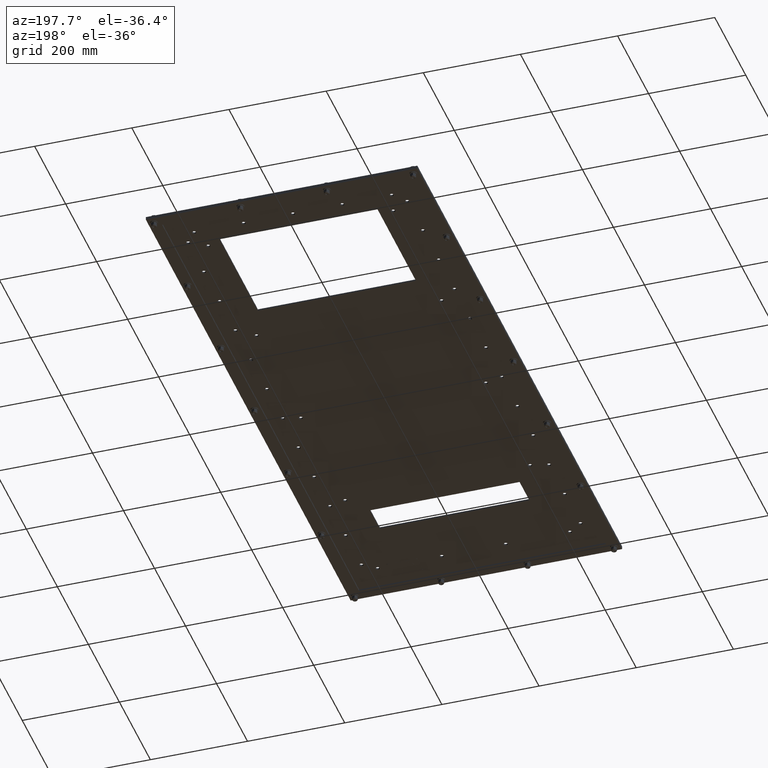
[diagram: clean part render]
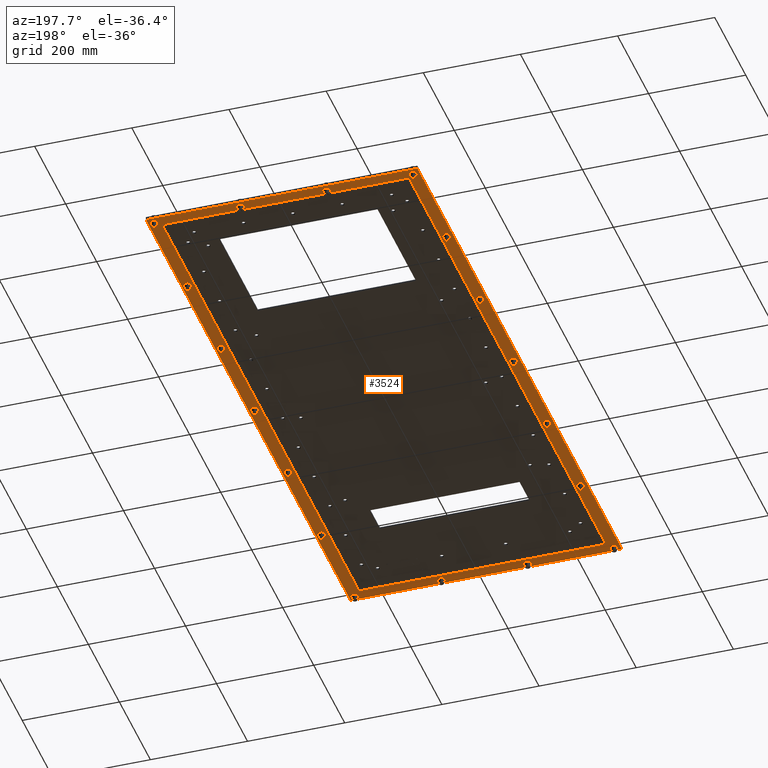
[diagram: same view with one face highlighted and labeled with its STEP entity id]
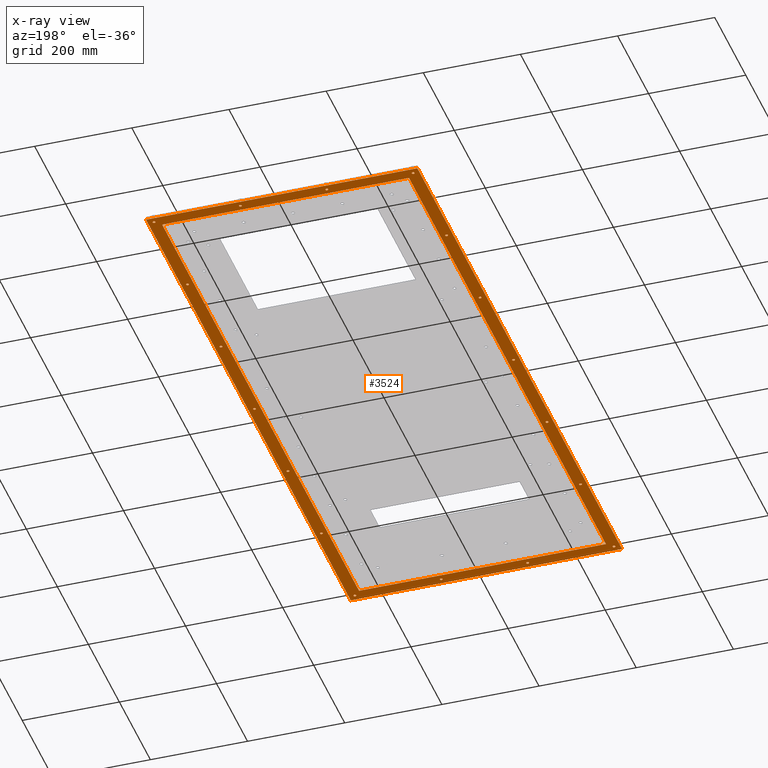
[diagram: x-ray of the same camera — body ghosted, the highlighted face saturated]
A machine part, auxiliary view. The second image highlights one B-rep face of the part: STEP entity #3524.
The next image is the same camera in x-ray: the body ghosted, the highlighted face saturated — about 0% of this face is hidden behind the body in this view.
In plain terms, the highlighted planar face has unit normal (0, 0, 1).
Its self-contained STEP definition (entity closure, byte-faithful):
#211=LINE('',#5544,#364);
#214=LINE('',#5550,#367);
#217=LINE('',#5556,#370);
#220=LINE('',#5560,#373);
#223=LINE('',#5568,#376);
#227=LINE('',#5575,#380);
#230=LINE('',#5581,#383);
#232=LINE('',#5584,#385);
#364=VECTOR('',#4589,50.);
#367=VECTOR('',#4594,20.);
#370=VECTOR('',#4599,50.);
#373=VECTOR('',#4604,20.);
#376=VECTOR('',#4609,52.);
#380=VECTOR('',#4615,22.);
#383=VECTOR('',#4620,52.);
#385=VECTOR('',#4624,22.);
#502=PLANE('',#3877);
#777=FACE_BOUND('',#1337,.T.);
#778=FACE_BOUND('',#1338,.T.);
#779=FACE_BOUND('',#1339,.T.);
#780=FACE_BOUND('',#1340,.T.);
#781=FACE_BOUND('',#1341,.T.);
#782=FACE_BOUND('',#1342,.T.);
#783=FACE_BOUND('',#1343,.T.);
#784=FACE_BOUND('',#1344,.T.);
#785=FACE_BOUND('',#1345,.T.);
#786=FACE_BOUND('',#1346,.T.);
#787=FACE_BOUND('',#1347,.T.);
#788=FACE_BOUND('',#1348,.T.);
#789=FACE_BOUND('',#1349,.T.);
#790=FACE_BOUND('',#1350,.T.);
#791=FACE_BOUND('',#1351,.T.);
#792=FACE_BOUND('',#1352,.T.);
#793=FACE_BOUND('',#1353,.T.);
#794=FACE_BOUND('',#1354,.T.);
#795=FACE_BOUND('',#1355,.T.);
#928=FACE_OUTER_BOUND('',#1336,.T.);
#1336=EDGE_LOOP('',(#2800,#2801,#2802,#2803));
#1337=EDGE_LOOP('',(#2804));
#1338=EDGE_LOOP('',(#2805));
#1339=EDGE_LOOP('',(#2806));
#1340=EDGE_LOOP('',(#2807));
#1341=EDGE_LOOP('',(#2808));
#1342=EDGE_LOOP('',(#2809));
#1343=EDGE_LOOP('',(#2810));
#1344=EDGE_LOOP('',(#2811));
#1345=EDGE_LOOP('',(#2812));
#1346=EDGE_LOOP('',(#2813));
#1347=EDGE_LOOP('',(#2814));
#1348=EDGE_LOOP('',(#2815));
#1349=EDGE_LOOP('',(#2816));
#1350=EDGE_LOOP('',(#2817));
#1351=EDGE_LOOP('',(#2818));
#1352=EDGE_LOOP('',(#2819));
#1353=EDGE_LOOP('',(#2820));
#1354=EDGE_LOOP('',(#2821));
#1355=EDGE_LOOP('',(#2822,#2823,#2824,#2825));
#1595=CIRCLE('',#3815,0.109375);
#1597=CIRCLE('',#3818,0.109375);
#1599=CIRCLE('',#3821,0.109375);
#1601=CIRCLE('',#3824,0.109375);
#1603=CIRCLE('',#3827,0.109375);
#1605=CIRCLE('',#3830,0.109375);
#1607=CIRCLE('',#3833,0.109375);
#1609=CIRCLE('',#3836,0.109375);
#1611=CIRCLE('',#3839,0.109375);
#1613=CIRCLE('',#3842,0.109375);
#1615=CIRCLE('',#3845,0.109375);
#1617=CIRCLE('',#3848,0.109375);
#1619=CIRCLE('',#3851,0.109375);
#1621=CIRCLE('',#3854,0.109375);
#1623=CIRCLE('',#3857,0.109375);
#1625=CIRCLE('',#3860,0.109375);
#1627=CIRCLE('',#3863,0.109375);
#1629=CIRCLE('',#3866,0.109375);
#1831=VERTEX_POINT('',#5448);
#1833=VERTEX_POINT('',#5453);
#1835=VERTEX_POINT('',#5458);
#1837=VERTEX_POINT('',#5463);
#1839=VERTEX_POINT('',#5468);
#1841=VERTEX_POINT('',#5473);
#1843=VERTEX_POINT('',#5478);
#1845=VERTEX_POINT('',#5483);
#1847=VERTEX_POINT('',#5488);
#1849=VERTEX_POINT('',#5493);
#1851=VERTEX_POINT('',#5498);
#1853=VERTEX_POINT('',#5503);
#1855=VERTEX_POINT('',#5508);
#1857=VERTEX_POINT('',#5513);
#1859=VERTEX_POINT('',#5518);
#1861=VERTEX_POINT('',#5523);
#1863=VERTEX_POINT('',#5528);
#1865=VERTEX_POINT('',#5533);
#1869=VERTEX_POINT('',#5541);
#1870=VERTEX_POINT('',#5543);
#1872=VERTEX_POINT('',#5549);
#1874=VERTEX_POINT('',#5555);
#1877=VERTEX_POINT('',#5565);
#1878=VERTEX_POINT('',#5567);
#1880=VERTEX_POINT('',#5573);
#1882=VERTEX_POINT('',#5579);
#2161=EDGE_CURVE('',#1831,#1831,#1595,.T.);
#2163=EDGE_CURVE('',#1833,#1833,#1597,.T.);
#2165=EDGE_CURVE('',#1835,#1835,#1599,.T.);
#2167=EDGE_CURVE('',#1837,#1837,#1601,.T.);
#2169=EDGE_CURVE('',#1839,#1839,#1603,.T.);
#2171=EDGE_CURVE('',#1841,#1841,#1605,.T.);
#2173=EDGE_CURVE('',#1843,#1843,#1607,.T.);
#2175=EDGE_CURVE('',#1845,#1845,#1609,.T.);
#2177=EDGE_CURVE('',#1847,#1847,#1611,.T.);
#2179=EDGE_CURVE('',#1849,#1849,#1613,.T.);
#2181=EDGE_CURVE('',#1851,#1851,#1615,.T.);
#2183=EDGE_CURVE('',#1853,#1853,#1617,.T.);
#2185=EDGE_CURVE('',#1855,#1855,#1619,.T.);
#2187=EDGE_CURVE('',#1857,#1857,#1621,.T.);
#2189=EDGE_CURVE('',#1859,#1859,#1623,.T.);
#2191=EDGE_CURVE('',#1861,#1861,#1625,.T.);
#2193=EDGE_CURVE('',#1863,#1863,#1627,.T.);
#2195=EDGE_CURVE('',#1865,#1865,#1629,.T.);
#2199=EDGE_CURVE('',#1870,#1869,#211,.T.);
#2202=EDGE_CURVE('',#1872,#1870,#214,.T.);
#2205=EDGE_CURVE('',#1874,#1872,#217,.T.);
#2208=EDGE_CURVE('',#1869,#1874,#220,.T.);
#2211=EDGE_CURVE('',#1878,#1877,#223,.T.);
#2215=EDGE_CURVE('',#1877,#1880,#227,.T.);
#2218=EDGE_CURVE('',#1880,#1882,#230,.T.);
#2220=EDGE_CURVE('',#1882,#1878,#232,.T.);
#2800=ORIENTED_EDGE('',*,*,#2220,.T.);
#2801=ORIENTED_EDGE('',*,*,#2211,.T.);
#2802=ORIENTED_EDGE('',*,*,#2215,.T.);
#2803=ORIENTED_EDGE('',*,*,#2218,.T.);
#2804=ORIENTED_EDGE('',*,*,#2161,.T.);
#2805=ORIENTED_EDGE('',*,*,#2163,.T.);
#2806=ORIENTED_EDGE('',*,*,#2165,.T.);
#2807=ORIENTED_EDGE('',*,*,#2167,.T.);
#2808=ORIENTED_EDGE('',*,*,#2169,.T.);
#2809=ORIENTED_EDGE('',*,*,#2171,.T.);
#2810=ORIENTED_EDGE('',*,*,#2173,.T.);
#2811=ORIENTED_EDGE('',*,*,#2175,.T.);
#2812=ORIENTED_EDGE('',*,*,#2177,.T.);
#2813=ORIENTED_EDGE('',*,*,#2179,.T.);
#2814=ORIENTED_EDGE('',*,*,#2181,.T.);
#2815=ORIENTED_EDGE('',*,*,#2183,.T.);
#2816=ORIENTED_EDGE('',*,*,#2185,.T.);
#2817=ORIENTED_EDGE('',*,*,#2187,.T.);
#2818=ORIENTED_EDGE('',*,*,#2189,.T.);
#2819=ORIENTED_EDGE('',*,*,#2191,.T.);
#2820=ORIENTED_EDGE('',*,*,#2193,.T.);
#2821=ORIENTED_EDGE('',*,*,#2195,.T.);
#2822=ORIENTED_EDGE('',*,*,#2199,.T.);
#2823=ORIENTED_EDGE('',*,*,#2208,.T.);
#2824=ORIENTED_EDGE('',*,*,#2205,.T.);
#2825=ORIENTED_EDGE('',*,*,#2202,.T.);
#3524=ADVANCED_FACE('',(#928,#777,#778,#779,#780,#781,#782,#783,#784,#785,
#786,#787,#788,#789,#790,#791,#792,#793,#794,#795),#502,.F.);
#3815=AXIS2_PLACEMENT_3D('',#5449,#4479,#4480);
#3818=AXIS2_PLACEMENT_3D('',#5454,#4485,#4486);
#3821=AXIS2_PLACEMENT_3D('',#5459,#4491,#4492);
#3824=AXIS2_PLACEMENT_3D('',#5464,#4497,#4498);
#3827=AXIS2_PLACEMENT_3D('',#5469,#4503,#4504);
#3830=AXIS2_PLACEMENT_3D('',#5474,#4509,#4510);
#3833=AXIS2_PLACEMENT_3D('',#5479,#4515,#4516);
#3836=AXIS2_PLACEMENT_3D('',#5484,#4521,#4522);
#3839=AXIS2_PLACEMENT_3D('',#5489,#4527,#4528);
#3842=AXIS2_PLACEMENT_3D('',#5494,#4533,#4534);
#3845=AXIS2_PLACEMENT_3D('',#5499,#4539,#4540);
#3848=AXIS2_PLACEMENT_3D('',#5504,#4545,#4546);
#3851=AXIS2_PLACEMENT_3D('',#5509,#4551,#4552);
#3854=AXIS2_PLACEMENT_3D('',#5514,#4557,#4558);
#3857=AXIS2_PLACEMENT_3D('',#5519,#4563,#4564);
#3860=AXIS2_PLACEMENT_3D('',#5524,#4569,#4570);
#3863=AXIS2_PLACEMENT_3D('',#5529,#4575,#4576);
#3866=AXIS2_PLACEMENT_3D('',#5534,#4581,#4582);
#3877=AXIS2_PLACEMENT_3D('',#5586,#4627,#4628);
#4479=DIRECTION('center_axis',(0.,0.,1.));
#4480=DIRECTION('ref_axis',(-1.,0.,0.));
#4485=DIRECTION('center_axis',(0.,0.,1.));
#4486=DIRECTION('ref_axis',(-1.,0.,0.));
#4491=DIRECTION('center_axis',(0.,0.,1.));
#4492=DIRECTION('ref_axis',(-1.,0.,0.));
#4497=DIRECTION('center_axis',(0.,0.,1.));
#4498=DIRECTION('ref_axis',(-1.,0.,0.));
#4503=DIRECTION('center_axis',(0.,0.,1.));
#4504=DIRECTION('ref_axis',(-1.,0.,0.));
#4509=DIRECTION('center_axis',(0.,0.,1.));
#4510=DIRECTION('ref_axis',(-1.,0.,0.));
#4515=DIRECTION('center_axis',(0.,0.,1.));
#4516=DIRECTION('ref_axis',(-1.,0.,0.));
#4521=DIRECTION('center_axis',(0.,0.,1.));
#4522=DIRECTION('ref_axis',(-1.,0.,0.));
#4527=DIRECTION('center_axis',(0.,0.,1.));
#4528=DIRECTION('ref_axis',(-1.,0.,0.));
#4533=DIRECTION('center_axis',(0.,0.,1.));
#4534=DIRECTION('ref_axis',(-1.,0.,0.));
#4539=DIRECTION('center_axis',(0.,0.,1.));
#4540=DIRECTION('ref_axis',(-1.,0.,0.));
#4545=DIRECTION('center_axis',(0.,0.,1.));
#4546=DIRECTION('ref_axis',(-1.,0.,0.));
#4551=DIRECTION('center_axis',(0.,0.,1.));
#4552=DIRECTION('ref_axis',(-1.,0.,0.));
#4557=DIRECTION('center_axis',(0.,0.,1.));
#4558=DIRECTION('ref_axis',(-1.,0.,0.));
#4563=DIRECTION('center_axis',(0.,0.,1.));
#4564=DIRECTION('ref_axis',(-1.,0.,0.));
#4569=DIRECTION('center_axis',(0.,0.,1.));
#4570=DIRECTION('ref_axis',(-1.,0.,0.));
#4575=DIRECTION('center_axis',(0.,0.,1.));
#4576=DIRECTION('ref_axis',(-1.,0.,0.));
#4581=DIRECTION('center_axis',(0.,0.,1.));
#4582=DIRECTION('ref_axis',(-1.,0.,0.));
#4589=DIRECTION('',(-1.67844740730732E-16,1.,0.));
#4594=DIRECTION('',(1.,5.59482469102441E-16,0.));
#4599=DIRECTION('',(5.59482469102441E-16,-1.,0.));
#4604=DIRECTION('',(-1.,0.,0.));
#4609=DIRECTION('',(3.22778347559101E-16,-1.,0.));
#4615=DIRECTION('',(-1.,0.,0.));
#4620=DIRECTION('',(-4.03472934448876E-16,1.,0.));
#4624=DIRECTION('',(1.,0.,0.));
#4627=DIRECTION('center_axis',(0.,0.,1.));
#4628=DIRECTION('ref_axis',(1.,0.,0.));
#5448=CARTESIAN_POINT('',(13.3394636570073,-34.4703914895966,0.));
#5449=CARTESIAN_POINT('Origin',(13.2300886570073,-34.4703914895966,0.));
#5453=CARTESIAN_POINT('',(6.33946365700733,-34.4703914895966,0.));
#5454=CARTESIAN_POINT('Origin',(6.23008865700733,-34.4703914895966,0.));
#5458=CARTESIAN_POINT('',(-0.66053634299267,-34.4703914895966,0.));
#5459=CARTESIAN_POINT('Origin',(-0.769911342992669,-34.4703914895966,0.));
#5463=CARTESIAN_POINT('',(-7.66053634299267,-34.4703914895966,0.));
#5464=CARTESIAN_POINT('Origin',(-7.76991134299267,-34.4703914895966,0.));
#5468=CARTESIAN_POINT('',(13.3394636570073,-25.9703914895966,0.));
#5469=CARTESIAN_POINT('Origin',(13.2300886570073,-25.9703914895966,0.));
#5473=CARTESIAN_POINT('',(-7.66053634299267,-25.9703914895966,0.));
#5474=CARTESIAN_POINT('Origin',(-7.76991134299267,-25.9703914895966,0.));
#5478=CARTESIAN_POINT('',(13.3394636570073,-17.4703914895966,0.));
#5479=CARTESIAN_POINT('Origin',(13.2300886570073,-17.4703914895966,0.));
#5483=CARTESIAN_POINT('',(-7.66053634299268,-17.4703914895966,0.));
#5484=CARTESIAN_POINT('Origin',(-7.76991134299268,-17.4703914895966,0.));
#5488=CARTESIAN_POINT('',(13.3394636570073,-8.97039148959656,0.));
#5489=CARTESIAN_POINT('Origin',(13.2300886570073,-8.97039148959656,0.));
#5493=CARTESIAN_POINT('',(-7.66053634299268,-8.97039148959656,0.));
#5494=CARTESIAN_POINT('Origin',(-7.76991134299268,-8.97039148959656,0.));
#5498=CARTESIAN_POINT('',(13.3394636570073,-0.470391489596561,0.));
#5499=CARTESIAN_POINT('Origin',(13.2300886570073,-0.470391489596561,0.));
#5503=CARTESIAN_POINT('',(-7.66053634299268,-0.470391489596561,0.));
#5504=CARTESIAN_POINT('Origin',(-7.76991134299268,-0.470391489596561,0.));
#5508=CARTESIAN_POINT('',(13.3394636570073,8.02960851040344,0.));
#5509=CARTESIAN_POINT('Origin',(13.2300886570073,8.02960851040344,0.));
#5513=CARTESIAN_POINT('',(-7.66053634299269,8.02960851040344,0.));
#5514=CARTESIAN_POINT('Origin',(-7.76991134299269,8.02960851040344,0.));
#5518=CARTESIAN_POINT('',(13.3394636570073,16.5296085104034,0.));
#5519=CARTESIAN_POINT('Origin',(13.2300886570073,16.5296085104034,0.));
#5523=CARTESIAN_POINT('',(6.33946365700731,16.5296085104034,0.));
#5524=CARTESIAN_POINT('Origin',(6.23008865700731,16.5296085104034,0.));
#5528=CARTESIAN_POINT('',(-0.66053634299269,16.5296085104034,0.));
#5529=CARTESIAN_POINT('Origin',(-0.76991134299269,16.5296085104034,0.));
#5533=CARTESIAN_POINT('',(-7.66053634299269,16.5296085104034,0.));
#5534=CARTESIAN_POINT('Origin',(-7.76991134299269,16.5296085104034,0.));
#5541=CARTESIAN_POINT('',(12.7300886570073,16.0296085104034,0.));
#5543=CARTESIAN_POINT('',(12.7300886570073,-33.9703914895966,0.));
#5544=CARTESIAN_POINT('',(12.7300886570073,3.52960851040344,0.));
#5549=CARTESIAN_POINT('',(-7.26991134299266,-33.9703914895966,0.));
#5550=CARTESIAN_POINT('',(7.73008865700733,-33.9703914895966,0.));
#5555=CARTESIAN_POINT('',(-7.26991134299269,16.0296085104034,0.));
#5556=CARTESIAN_POINT('',(-7.26991134299267,-21.4703914895966,0.));
#5560=CARTESIAN_POINT('',(-2.26991134299269,16.0296085104034,0.));
#5565=CARTESIAN_POINT('',(13.7300886570073,-34.9703914895966,0.));
#5567=CARTESIAN_POINT('',(13.7300886570073,17.0296085104034,0.));
#5568=CARTESIAN_POINT('',(13.7300886570073,17.0296085104034,0.));
#5573=CARTESIAN_POINT('',(-8.26991134299267,-34.9703914895966,0.));
#5575=CARTESIAN_POINT('',(13.7300886570073,-34.9703914895966,0.));
#5579=CARTESIAN_POINT('',(-8.26991134299269,17.0296085104034,0.));
#5581=CARTESIAN_POINT('',(-8.26991134299267,-34.9703914895966,0.));
#5584=CARTESIAN_POINT('',(-8.26991134299269,17.0296085104034,0.));
#5586=CARTESIAN_POINT('Origin',(2.73008865700732,-8.97039148959656,0.));